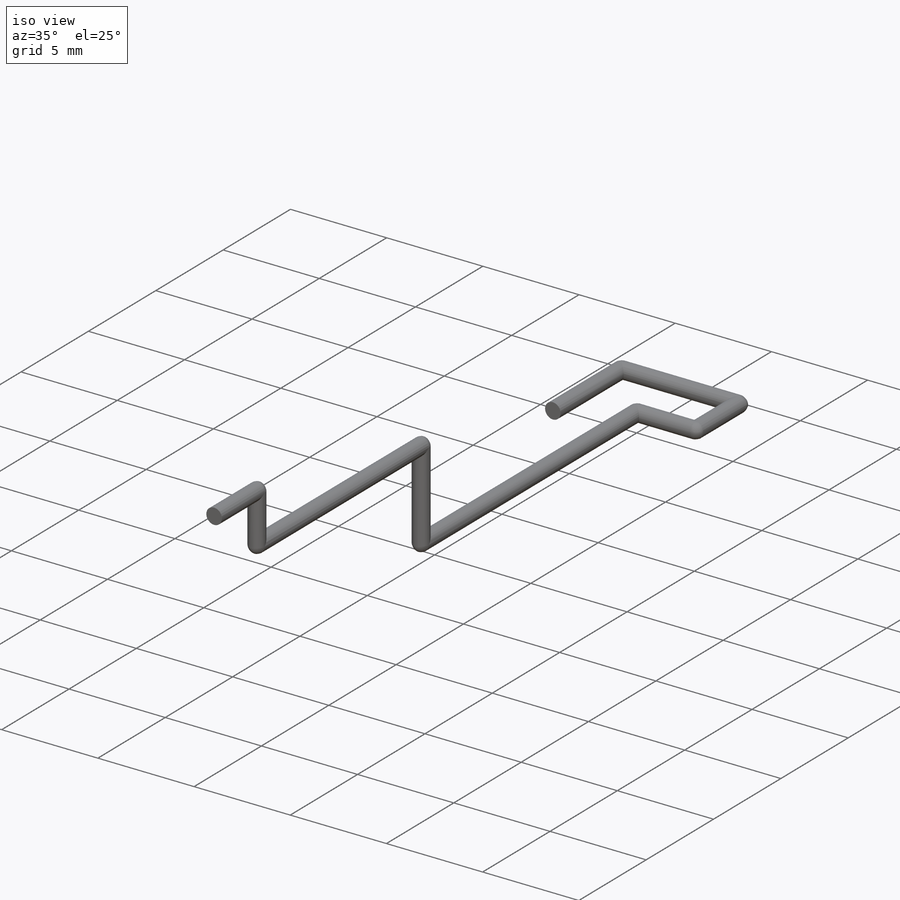
[diagram: iso view]
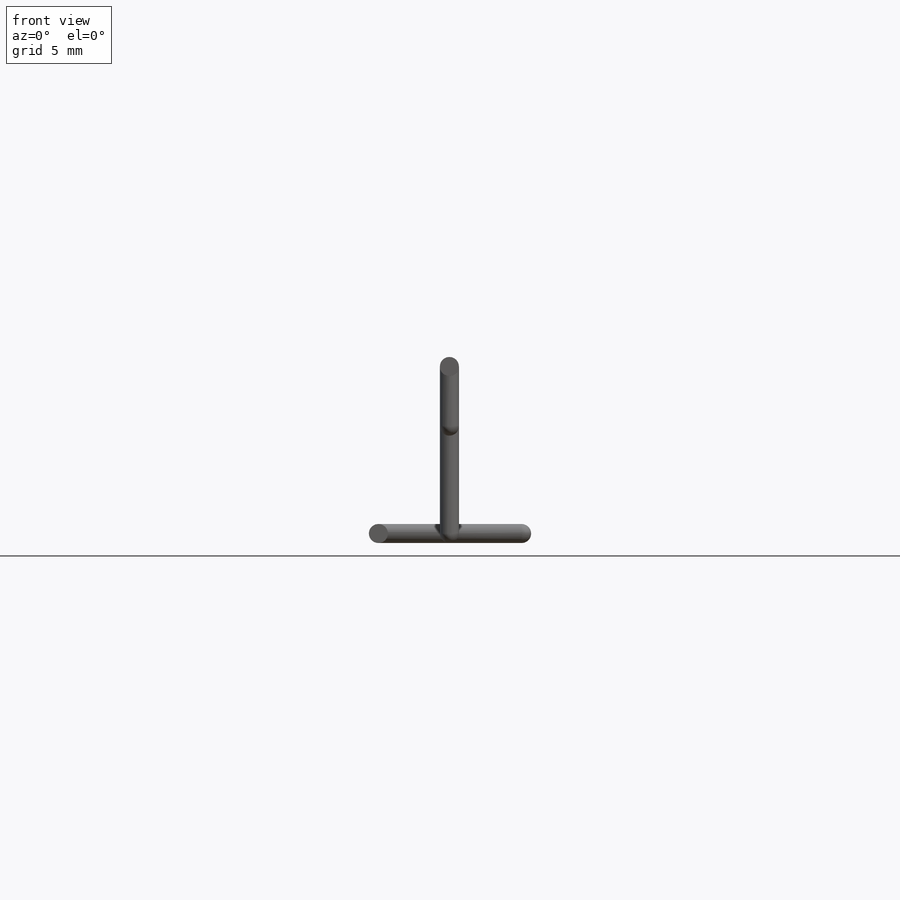
[diagram: front view]
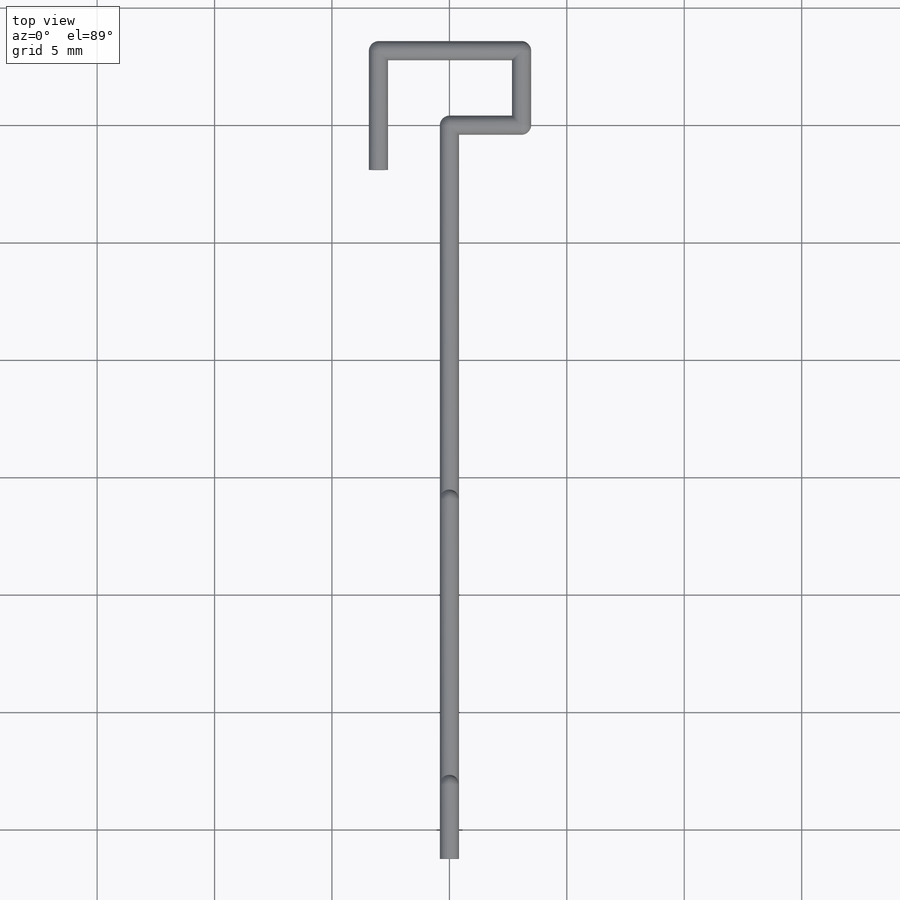
[diagram: top view]
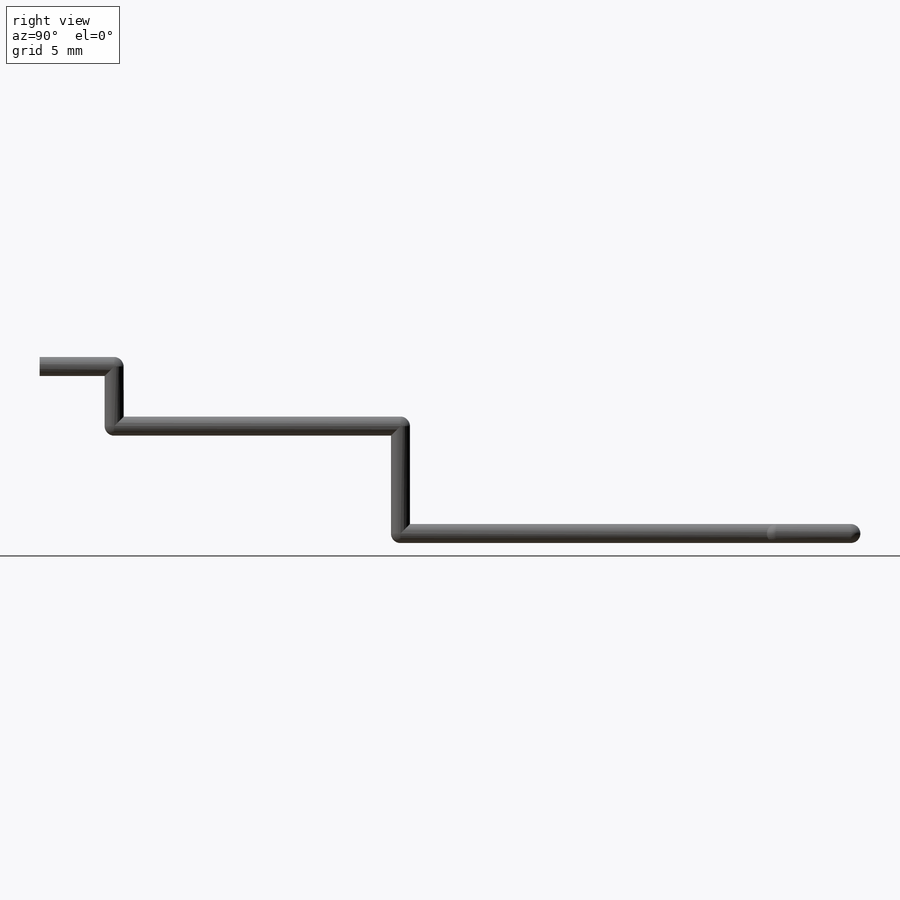
[diagram: right view]
SOLIDWORKS PART (.sldprt)
format: sldprt  version: not decoded by parser v0  size: 339,456 bytes
history: native  units: mm
features: sketch x17, extrude x16, material x1 (+16 scaffold rows collapsed)
feature tree (50):
  scaffold x16  (default folders/planes/origin — collapsed)
  material  "Material <not specified>"
  sketch  "Sketch1"  dims[D1=0.8128mm]
  extrude  "Boss-Extrude1"  Depth=16.002mm
  sketch  "Sketch3"
  extrude  "Boss-Extrude2"  Depth=4.572mm
  sketch  "Sketch4"
  extrude  "Boss-Extrude3"  Depth=12.192mm
  sketch  "Sketch6"
  extrude  "Boss-Extrude5"  Depth=2.54mm
  sketch  "Sketch7"
  extrude  "Boss-Extrude6"  Depth=3.175mm
  sketch  "Sketch8"
  extrude  "Boss-Extrude7"  Depth=3.0734mm
  sketch  "Sketch9"
  extrude  "Boss-Extrude8"  Depth=3.175mm
  sketch  "Sketch10"
  extrude  "Boss-Extrude9"  Depth=6.096mm
  sketch  "Sketch11"
  sketch  "Sketch12"
  sketch  "Sketch13"
  sketch  "Sketch14"
  extrude  "Loft2"  [1 undecoded]
  extrude  "Loft3"  [1 undecoded]
  extrude  "Loft4"  [1 undecoded]
  sketch  "Sketch15"
  sketch  "Sketch16"
  sketch  "Sketch17"
  extrude  "Loft6"  [1 undecoded]
  extrude  "Loft7"  [1 undecoded]
  sketch  "Sketch18"
  extrude  "Boss-Extrude10"  Depth=5.08mm
  sketch  "Sketch19"
  extrude  "Loft8"  [1 undecoded]
  extrude  "Loft9"  [1 undecoded]
decode coverage: 10 of 33 modeling features carry decoded parameters
note: 7 parameter values undecoded
summary: no parameter record found for 7 features
note: suppression state not decoded; provenance and decode notes live in map.json
